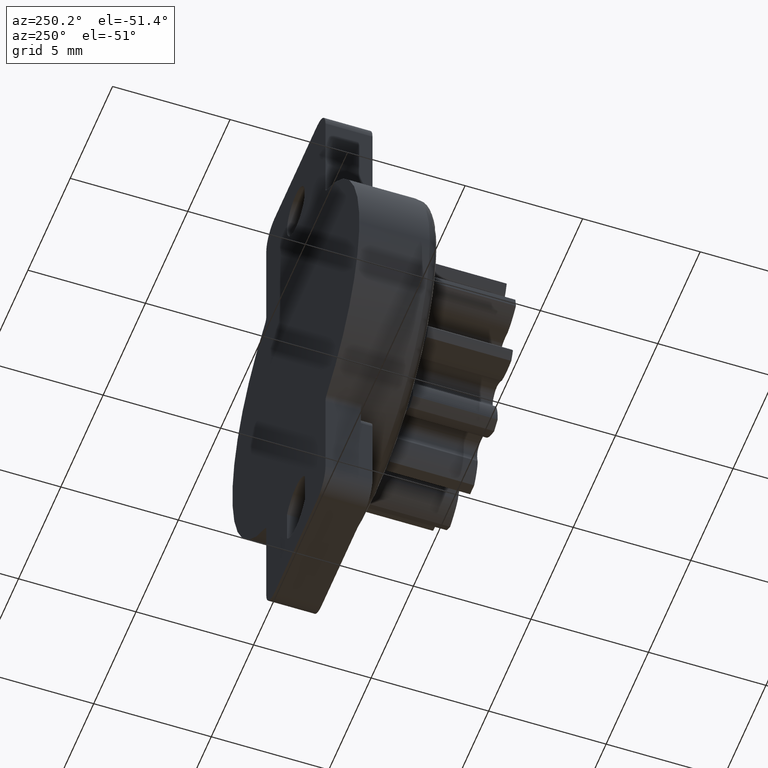
[diagram: clean part render]
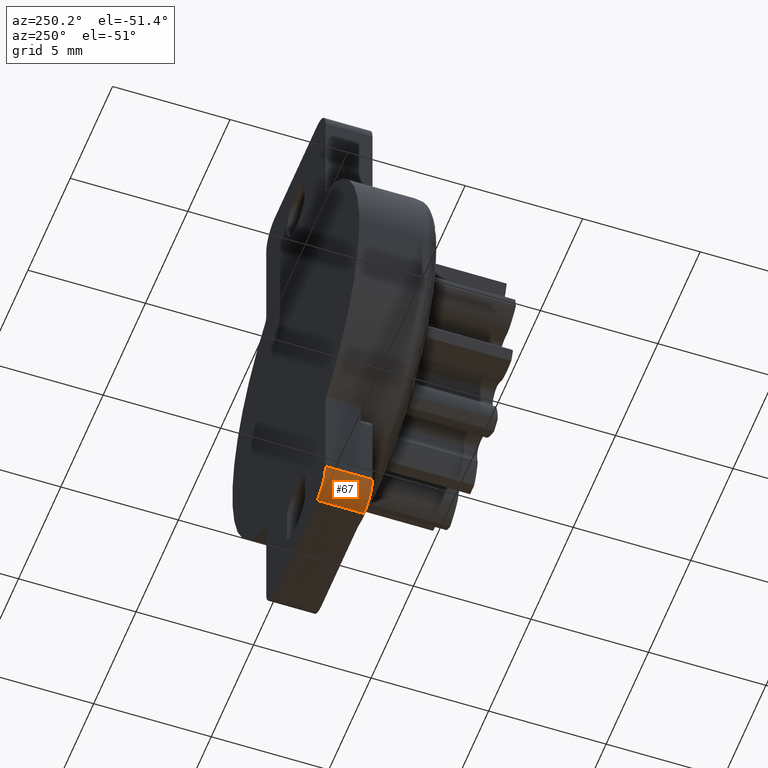
[diagram: same view with one face highlighted and labeled with its STEP entity id]
A machine part, auxiliary view. The second image highlights one B-rep face of the part: STEP entity #67.
In plain terms, the highlighted cylindrical surface (edge-blend (fillet) strip) has radius 1 mm, axis along (-0, 1, 0).
Its self-contained STEP definition (entity closure, byte-faithful):
#67=ADVANCED_FACE('',(#961),#960,.T.);
#960=CYLINDRICAL_SURFACE('',#7276,1.00000009537E+00);
#961=FACE_OUTER_BOUND('',#7277,.T.);
#7273=CARTESIAN_POINT('',(-2.50000000000E+00,9.98500000000E+02,-1.10000000000E+01));
#7274=DIRECTION('',(-0.00000000000E+00,1.00000000000E+00,0.00000000000E+00));
#7275=DIRECTION('',(-0.00000000000E+00,-0.00000000000E+00,1.00000000000E+00));
#7276=AXIS2_PLACEMENT_3D('',#7273,#7274,#7275);
#7277=EDGE_LOOP('',(#10612,#10613,#10614,#10615));
#10612=ORIENTED_EDGE('',*,*,#14370,.T.);
#10613=ORIENTED_EDGE('',*,*,#14285,.F.);
#10614=ORIENTED_EDGE('',*,*,#14371,.F.);
#10615=ORIENTED_EDGE('',*,*,#14336,.T.);
#14285=EDGE_CURVE('',#16253,#16260,#16261,.T.);
#14336=EDGE_CURVE('',#16609,#16602,#16610,.T.);
#14370=EDGE_CURVE('',#16602,#16260,#16828,.T.);
#14371=EDGE_CURVE('',#16609,#16253,#16834,.T.);
#16253=VERTEX_POINT('',#28948);
#16260=VERTEX_POINT('',#28952);
#16261=CIRCLE('',#28956,1.00000009537E+00);
#16602=VERTEX_POINT('',#29174);
#16609=VERTEX_POINT('',#29178);
#16610=CIRCLE('',#29182,1.00000009537E+00);
#16828=LINE('',#29308,#29309);
#16834=LINE('',#29311,#29312);
#28948=CARTESIAN_POINT('',(-3.50000009537E+00,-2.00000000000E+00,-1.09999999476E+01));
#28952=CARTESIAN_POINT('',(-2.50000000000E+00,-2.00000000000E+00,-1.20000000954E+01));
#28953=CARTESIAN_POINT('',(-2.50000000000E+00,-2.00000000000E+00,-1.10000000000E+01));
#28954=DIRECTION('',(0.00000000000E+00,-1.00000000000E+00,0.00000000000E+00));
#28955=DIRECTION('',(-0.00000000000E+00,-0.00000000000E+00,1.00000000000E+00));
#28956=AXIS2_PLACEMENT_3D('',#28953,#28954,#28955);
#29174=CARTESIAN_POINT('',(-2.50000000000E+00,0.00000000000E+00,-1.20000000954E+01));
#29178=CARTESIAN_POINT('',(-3.50000000000E+00,0.00000000000E+00,-1.10000000000E+01));
#29179=CARTESIAN_POINT('',(-2.50000000000E+00,0.00000000000E+00,-1.10000000000E+01));
#29180=DIRECTION('',(0.00000000000E+00,-1.00000000000E+00,0.00000000000E+00));
#29181=DIRECTION('',(-0.00000000000E+00,-0.00000000000E+00,-1.00000000000E+00));
#29182=AXIS2_PLACEMENT_3D('',#29179,#29180,#29181);
#29308=CARTESIAN_POINT('',(-2.50000000000E+00,0.00000000000E+00,-1.20000000954E+01));
#29309=VECTOR('',#29310,2.00000000000E+00);
#29310=DIRECTION('',(0.00000000000E+00,-1.00000000000E+00,0.00000000000E+00));
#29311=CARTESIAN_POINT('',(-3.50000000000E+00,0.00000000000E+00,-1.10000000000E+01));
#29312=VECTOR('',#29313,2.00000000000E+00);
#29313=DIRECTION('',(0.00000000000E+00,-1.00000000000E+00,0.00000000000E+00));